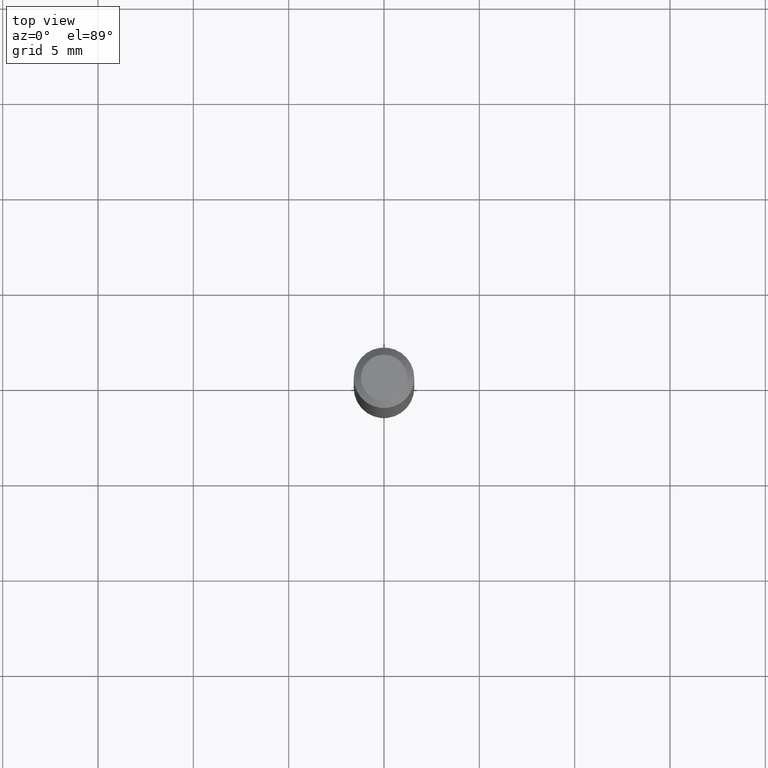
[diagram: clean part render]
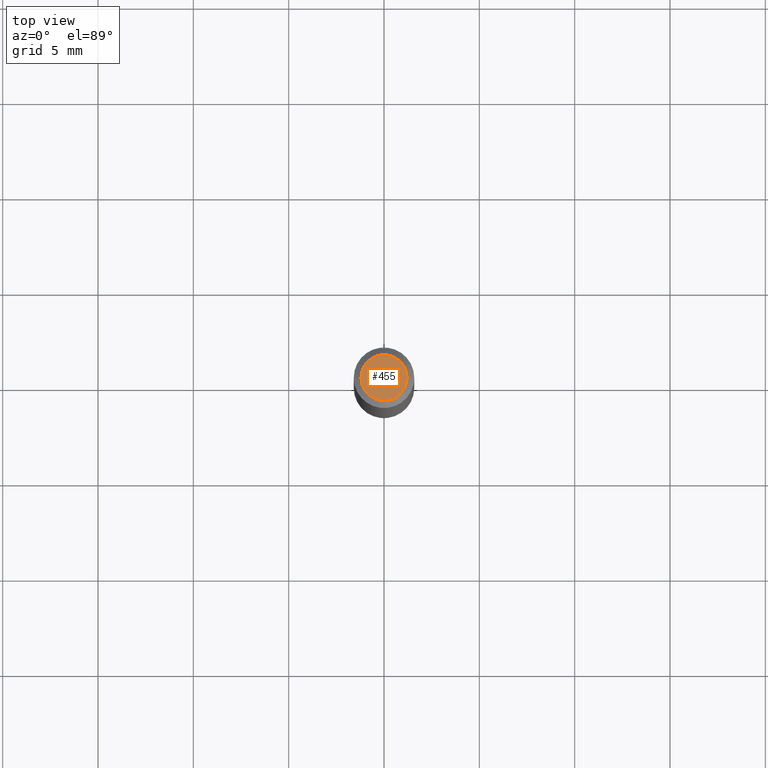
[diagram: same view with one face highlighted and labeled with its STEP entity id]
A machine part, top view. The second image highlights one B-rep face of the part: STEP entity #455.
In plain terms, the highlighted planar face has unit normal (0, -0, -1).
Its self-contained STEP definition (entity closure, byte-faithful):
#39 = VERTEX_POINT ( 'NONE', #96 ) ;
#77 = CIRCLE ( 'NONE', #357, 0.04750000000000000749 ) ;
#96 = CARTESIAN_POINT ( 'NONE',  ( -0.04750000000000000749, 3.578768372314221353E-16, 2.731847993664239060E-16 ) ) ;
#104 = DIRECTION ( 'NONE',  ( -2.445468806185136597E-29, 3.491481338843145583E-15, 1.000000000000000000 ) ) ;
#119 = VERTEX_POINT ( 'NONE', #260 ) ;
#151 = DIRECTION ( 'NONE',  ( -2.445468806185136597E-29, 3.491481338843145583E-15, 1.000000000000000000 ) ) ;
#163 = ORIENTED_EDGE ( 'NONE', *, *, #509, .T. ) ;
#175 = AXIS2_PLACEMENT_3D ( 'NONE', #338, #104, #419 ) ;
#210 = ORIENTED_EDGE ( 'NONE', *, *, #287, .T. ) ;
#226 = PLANE ( 'NONE',  #358 ) ;
#249 = CIRCLE ( 'NONE', #175, 0.04750000000000000749 ) ;
#260 = CARTESIAN_POINT ( 'NONE',  ( 0.04750000000000000749, -4.035134999187568762E-16, 2.731847993664288856E-16 ) ) ;
#281 = EDGE_LOOP ( 'NONE', ( #163, #210 ) ) ;
#287 = EDGE_CURVE ( 'NONE', #119, #39, #77, .T. ) ;
#299 = DIRECTION ( 'NONE',  ( 1.000000000000000000, -6.982962677686266711E-15, 4.852736867747365086E-29 ) ) ;
#338 = CARTESIAN_POINT ( 'NONE',  ( -6.680649051745406845E-45, 9.538196290434862081E-31, 2.731847993664263218E-16 ) ) ;
#342 = CARTESIAN_POINT ( 'NONE',  ( -6.680649051745406845E-45, 9.538196290434862081E-31, 2.731847993664263218E-16 ) ) ;
#345 = DIRECTION ( 'NONE',  ( 2.438088387897960049E-29, -3.491481338843145188E-15, -1.000000000000000000 ) ) ;
#357 = AXIS2_PLACEMENT_3D ( 'NONE', #342, #151, #299 ) ;
#358 = AXIS2_PLACEMENT_3D ( 'NONE', #429, #345, #376 ) ;
#376 = DIRECTION ( 'NONE',  ( -1.000000000000000000, 6.982962677686265922E-15, -4.876176775795935793E-29 ) ) ;
#419 = DIRECTION ( 'NONE',  ( 1.000000000000000000, -6.982962677686266711E-15, 4.852736867747365086E-29 ) ) ;
#429 = CARTESIAN_POINT ( 'NONE',  ( 3.316907271900976589E-16, 0.04750000000000000749, -2.925296391183627249E-17 ) ) ;
#455 = ADVANCED_FACE ( 'NONE', ( #503 ), #226, .F. ) ;
#503 = FACE_OUTER_BOUND ( 'NONE', #281, .T. ) ;
#509 = EDGE_CURVE ( 'NONE', #39, #119, #249, .T. ) ;